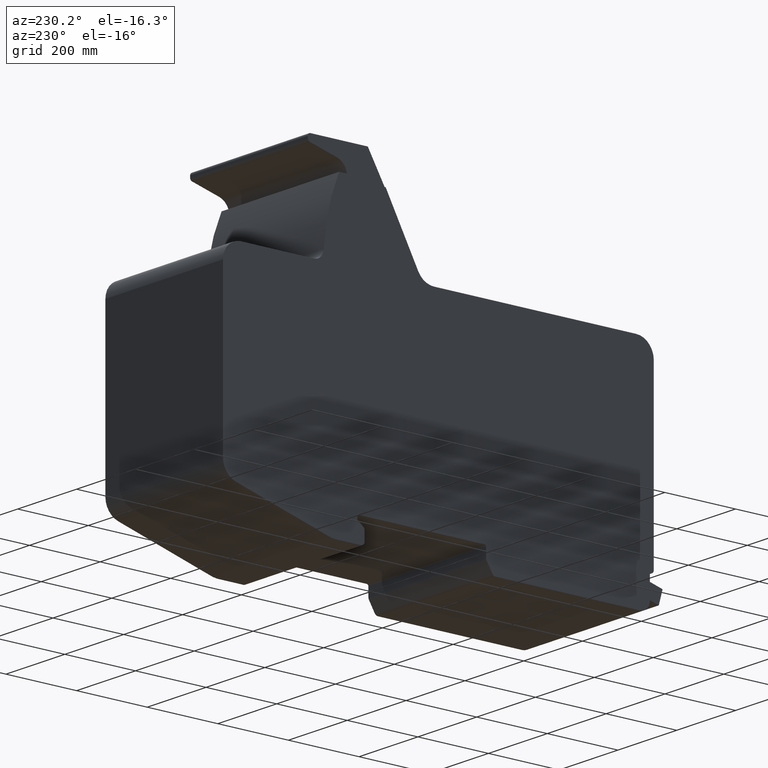
[diagram: clean part render]
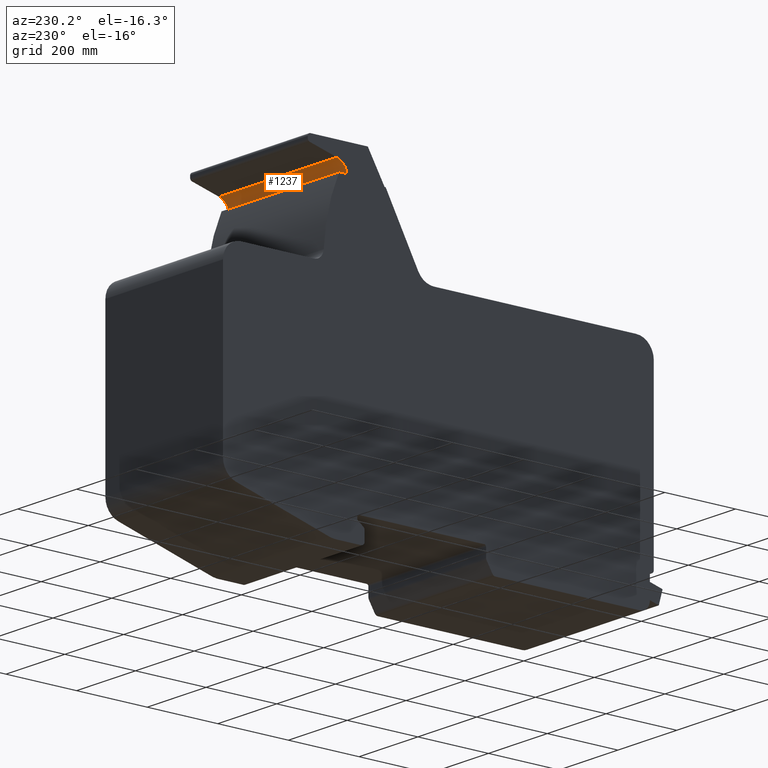
[diagram: same view with one face highlighted and labeled with its STEP entity id]
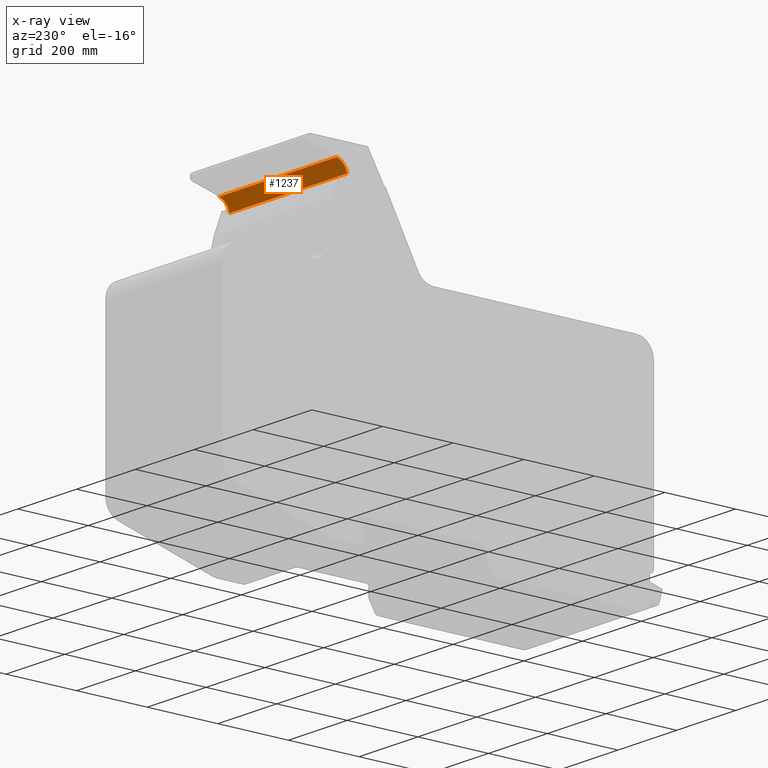
[diagram: x-ray of the same camera — body ghosted, the highlighted face saturated]
A machine part, auxiliary view. The second image highlights one B-rep face of the part: STEP entity #1237.
The next image is the same camera in x-ray: the body ghosted, the highlighted face saturated — about 0% of this face is hidden behind the body in this view.
In plain terms, the highlighted cylindrical surface (edge-blend (fillet) strip) has radius 40 mm, axis along (1, 0, 0).
Its self-contained STEP definition (entity closure, byte-faithful):
#1179=CARTESIAN_POINT('',(400.0,62.957238195901937,799.34670822977546));
#1180=VERTEX_POINT('',#1179);
#1187=CARTESIAN_POINT('',(0.0,62.957238195901937,799.34670822977546));
#1188=VERTEX_POINT('',#1187);
#1189=CARTESIAN_POINT('',(0.0,62.957238195901937,799.34670822977546));
#1190=DIRECTION('',(1.0,0.0,0.0));
#1191=VECTOR('',#1190,400.0);
#1192=LINE('',#1189,#1191);
#1193=EDGE_CURVE('',#1188,#1180,#1192,.T.);
#1205=CARTESIAN_POINT('',(0.0,73.31000000000725,760.70967517820793));
#1206=DIRECTION('',(1.0,0.0,0.0));
#1207=DIRECTION('',(0.0,-0.738609751546948,0.674133247155008));
#1208=AXIS2_PLACEMENT_3D('',#1205,#1206,#1207);
#1209=CYLINDRICAL_SURFACE('',#1208,40.000000000005755);
#1210=CARTESIAN_POINT('',(400.0,33.890569653856417,767.49999999999841));
#1211=VERTEX_POINT('',#1210);
#1212=CARTESIAN_POINT('',(400.0,73.31000000000725,760.70967517820793));
#1213=DIRECTION('',(1.0,0.0,0.0));
#1214=DIRECTION('',(0.0,-0.738609751546948,0.674133247155008));
#1215=AXIS2_PLACEMENT_3D('',#1212,#1213,#1214);
#1216=CIRCLE('',#1215,40.000000000005755);
#1217=EDGE_CURVE('',#1180,#1211,#1216,.T.);
#1218=ORIENTED_EDGE('',*,*,#1217,.T.);
#1219=CARTESIAN_POINT('',(0.0,33.890569653856417,767.49999999999841));
#1220=VERTEX_POINT('',#1219);
#1221=CARTESIAN_POINT('',(0.0,33.890569653856417,767.49999999999841));
#1222=DIRECTION('',(1.0,0.0,0.0));
#1223=VECTOR('',#1222,400.0);
#1224=LINE('',#1221,#1223);
#1225=EDGE_CURVE('',#1220,#1211,#1224,.T.);
#1226=ORIENTED_EDGE('',*,*,#1225,.F.);
#1227=CARTESIAN_POINT('',(0.0,73.31000000000725,760.70967517820793));
#1228=DIRECTION('',(-1.0,0.0,0.0));
#1229=DIRECTION('',(0.0,-0.738609751546948,0.674133247155008));
#1230=AXIS2_PLACEMENT_3D('',#1227,#1228,#1229);
#1231=CIRCLE('',#1230,40.000000000005755);
#1232=EDGE_CURVE('',#1220,#1188,#1231,.T.);
#1233=ORIENTED_EDGE('',*,*,#1232,.T.);
#1234=ORIENTED_EDGE('',*,*,#1193,.T.);
#1235=EDGE_LOOP('',(#1218,#1226,#1233,#1234));
#1236=FACE_OUTER_BOUND('',#1235,.T.);
#1237=ADVANCED_FACE('',(#1236),#1209,.F.);